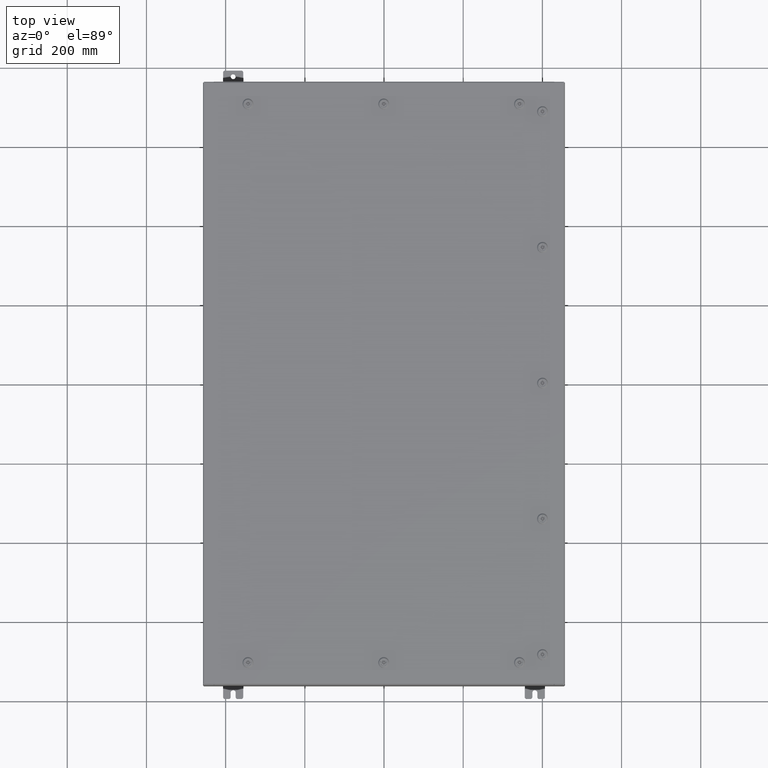
[diagram: clean part render]
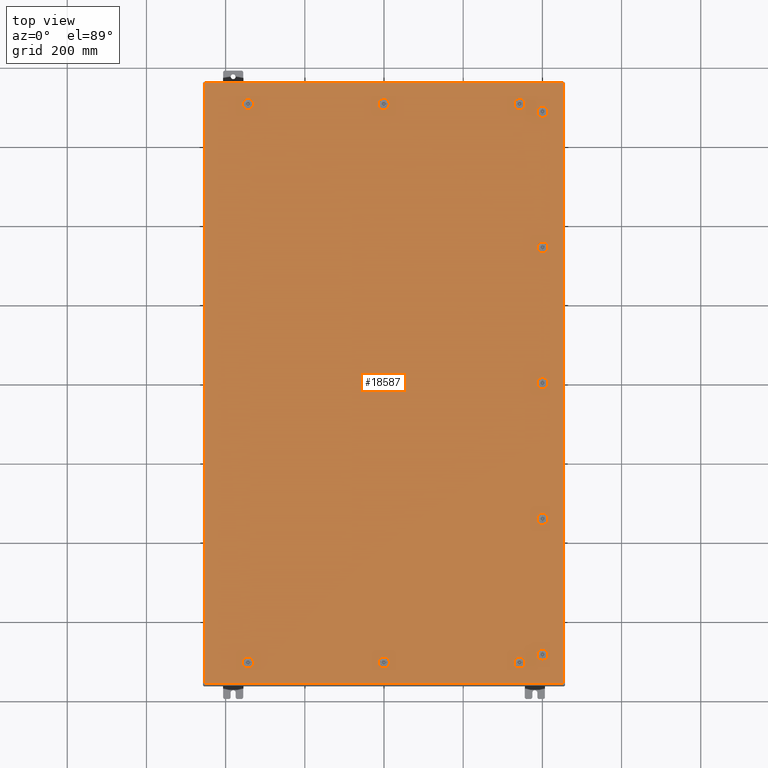
[diagram: same view with one face highlighted and labeled with its STEP entity id]
A machine part, top view. The second image highlights one B-rep face of the part: STEP entity #18587.
In plain terms, the highlighted planar face has unit normal (0, 0, -1).
Its self-contained STEP definition (entity closure, byte-faithful):
#220 = VERTEX_POINT ( 'NONE', #23603 ) ;
#528 = FACE_BOUND ( 'NONE', #1565, .T. ) ;
#843 = LINE ( 'NONE', #63535, #13342 ) ;
#865 = VECTOR ( 'NONE', #45114, 39.37007874015748100 ) ;
#869 = ORIENTED_EDGE ( 'NONE', *, *, #2187, .F. ) ;
#908 = EDGE_LOOP ( 'NONE', ( #43928, #58422, #61306, #27218 ) ) ;
#1167 = LINE ( 'NONE', #28149, #11993 ) ;
#1236 = ORIENTED_EDGE ( 'NONE', *, *, #60644, .F. ) ;
#1248 = DIRECTION ( 'NONE',  ( 1.000000000000000000, 0.0000000000000000000, 0.0000000000000000000 ) ) ;
#1367 = CARTESIAN_POINT ( 'NONE',  ( 13.49999999999998600, 27.78780000000000100, -9.426999614876453700E-014 ) ) ;
#1439 = VERTEX_POINT ( 'NONE', #38857 ) ;
#1546 = VERTEX_POINT ( 'NONE', #28765 ) ;
#1565 = EDGE_LOOP ( 'NONE', ( #2368, #68576, #12767, #21330 ) ) ;
#1644 = AXIS2_PLACEMENT_3D ( 'NONE', #12129, #49527, #17473 ) ;
#1695 = EDGE_CURVE ( 'NONE', #48934, #34181, #65486, .T. ) ;
#2107 = EDGE_CURVE ( 'NONE', #1546, #54609, #25232, .T. ) ;
#2187 = EDGE_CURVE ( 'NONE', #1439, #32171, #52006, .T. ) ;
#2241 = VERTEX_POINT ( 'NONE', #54406 ) ;
#2368 = ORIENTED_EDGE ( 'NONE', *, *, #33080, .F. ) ;
#2431 = DIRECTION ( 'NONE',  ( 0.0000000000000000000, 0.0000000000000000000, 1.000000000000000000 ) ) ;
#2503 = CARTESIAN_POINT ( 'NONE',  ( 15.39280000000001900, 27.19945237526790300, 0.0000000000000000000 ) ) ;
#2537 = LINE ( 'NONE', #66394, #865 ) ;
#2580 = CARTESIAN_POINT ( 'NONE',  ( 17.84979999999999800, 29.84980000000001300, 1.946441695485787500E-015 ) ) ;
#2694 = ORIENTED_EDGE ( 'NONE', *, *, #59518, .F. ) ;
#2816 = CARTESIAN_POINT ( 'NONE',  ( 0.1994523752679067700, -28.18279999999999300, -2.548900087721007400E-013 ) ) ;
#3038 = CARTESIAN_POINT ( 'NONE',  ( 15.39280000000001900, 13.69945237526790600, 0.0000000000000000000 ) ) ;
#3260 = ORIENTED_EDGE ( 'NONE', *, *, #3311, .F. ) ;
#3311 = EDGE_CURVE ( 'NONE', #25076, #10762, #61180, .T. ) ;
#3403 = DIRECTION ( 'NONE',  ( 1.000000000000000000, 0.0000000000000000000, 6.982962677686270700E-015 ) ) ;
#3405 = VERTEX_POINT ( 'NONE', #68634 ) ;
#3453 = EDGE_LOOP ( 'NONE', ( #17571, #46515, #3260, #41930, #21880 ) ) ;
#3461 = DIRECTION ( 'NONE',  ( 0.0000000000000000000, 1.000000000000000000, 0.0000000000000000000 ) ) ;
#3538 = VERTEX_POINT ( 'NONE', #16371 ) ;
#4076 = VERTEX_POINT ( 'NONE', #30591 ) ;
#4240 = VERTEX_POINT ( 'NONE', #63569 ) ;
#4435 = EDGE_LOOP ( 'NONE', ( #47374, #18321, #28567, #24436 ) ) ;
#4459 = VECTOR ( 'NONE', #58458, 39.37007874015748100 ) ;
#4688 = ORIENTED_EDGE ( 'NONE', *, *, #5473, .T. ) ;
#4708 = DIRECTION ( 'NONE',  ( 0.0000000000000000000, 0.0000000000000000000, 1.000000000000000000 ) ) ;
#4846 = CARTESIAN_POINT ( 'NONE',  ( -0.1994523752678657400, 28.18280000000000000, 0.0000000000000000000 ) ) ;
#4865 = DIRECTION ( 'NONE',  ( -1.000000000000000000, 0.0000000000000000000, 7.785697190086061500E-029 ) ) ;
#4986 = VERTEX_POINT ( 'NONE', #57305 ) ;
#5129 = EDGE_CURVE ( 'NONE', #22264, #4076, #22650, .T. ) ;
#5171 = LINE ( 'NONE', #53426, #6873 ) ;
#5233 = VERTEX_POINT ( 'NONE', #64312 ) ;
#5315 = CARTESIAN_POINT ( 'NONE',  ( -13.05749999999998900, 27.78780000000000100, 0.0000000000000000000 ) ) ;
#5459 = CIRCLE ( 'NONE', #45275, 0.4424999999999983400 ) ;
#5473 = EDGE_CURVE ( 'NONE', #8703, #19816, #53582, .T. ) ;
#5493 = CARTESIAN_POINT ( 'NONE',  ( 16.18280000000000000, 0.1994523752679009100, 0.0000000000000000000 ) ) ;
#5497 = CARTESIAN_POINT ( 'NONE',  ( -17.84979999999999800, -29.84979999999999500, 1.946441695485787500E-015 ) ) ;
#5559 = VERTEX_POINT ( 'NONE', #3038 ) ;
#5678 = EDGE_CURVE ( 'NONE', #45858, #25076, #48526, .T. ) ;
#5921 = AXIS2_PLACEMENT_3D ( 'NONE', #22201, #59660, #27586 ) ;
#6004 = CARTESIAN_POINT ( 'NONE',  ( -13.30054762473209500, -28.18280000000000700, -2.548900087721007400E-013 ) ) ;
#6061 = LINE ( 'NONE', #6559, #20213 ) ;
#6409 = EDGE_CURVE ( 'NONE', #10762, #62846, #66105, .T. ) ;
#6559 = CARTESIAN_POINT ( 'NONE',  ( -13.30054762473210400, -27.39280000000001900, -2.493734682567286900E-013 ) ) ;
#6636 = CARTESIAN_POINT ( 'NONE',  ( 0.1994523752679067700, 28.18279999999999300, 0.0000000000000000000 ) ) ;
#6725 = DIRECTION ( 'NONE',  ( -1.000000000000000000, 0.0000000000000000000, 6.982962677686269100E-015 ) ) ;
#6873 = VECTOR ( 'NONE', #58820, 39.37007874015748100 ) ;
#7447 = CIRCLE ( 'NONE', #1644, 0.4424999999999961700 ) ;
#7516 = DIRECTION ( 'NONE',  ( -0.0000000000000000000, -6.982962677686266700E-015, 1.000000000000000000 ) ) ;
#7694 = ORIENTED_EDGE ( 'NONE', *, *, #34315, .F. ) ;
#7776 = CIRCLE ( 'NONE', #48303, 0.4424999999999983400 ) ;
#7865 = DIRECTION ( 'NONE',  ( -1.095739467627844000E-014, -1.000000000000000000, 0.0000000000000000000 ) ) ;
#8086 = DIRECTION ( 'NONE',  ( -0.0000000000000000000, -6.982962677686266700E-015, 1.000000000000000000 ) ) ;
#8171 = DIRECTION ( 'NONE',  ( 1.000000000000000000, 1.095739467627836100E-014, 7.785697190085984100E-029 ) ) ;
#8703 = VERTEX_POINT ( 'NONE', #22737 ) ;
#8879 = DIRECTION ( 'NONE',  ( -5.478697338139280000E-015, 1.000000000000000000, -0.0000000000000000000 ) ) ;
#8896 = VERTEX_POINT ( 'NONE', #34424 ) ;
#8937 = EDGE_CURVE ( 'NONE', #30367, #8896, #55014, .T. ) ;
#8985 = CARTESIAN_POINT ( 'NONE',  ( 15.78780000000001500, -27.00000000000001400, -1.885399922975292500E-013 ) ) ;
#9073 = DIRECTION ( 'NONE',  ( 1.000000000000000000, -1.095739467627832000E-014, 6.982962677686152300E-015 ) ) ;
#9282 = CIRCLE ( 'NONE', #37615, 0.4424999999999972800 ) ;
#9424 = AXIS2_PLACEMENT_3D ( 'NONE', #22128, #59575, #27497 ) ;
#9447 = DIRECTION ( 'NONE',  ( 0.0000000000000000000, 0.0000000000000000000, -1.000000000000000000 ) ) ;
#9879 = VECTOR ( 'NONE', #7865, 39.37007874015748100 ) ;
#9902 = CARTESIAN_POINT ( 'NONE',  ( 0.0000000000000000000, 0.0000000000000000000, 0.0000000000000000000 ) ) ;
#10132 = VERTEX_POINT ( 'NONE', #26691 ) ;
#10194 = ORIENTED_EDGE ( 'NONE', *, *, #66182, .F. ) ;
#10344 = CIRCLE ( 'NONE', #15964, 0.4424999999999969000 ) ;
#10750 = EDGE_CURVE ( 'NONE', #61162, #65554, #56560, .T. ) ;
#10762 = VERTEX_POINT ( 'NONE', #45107 ) ;
#10807 = ORIENTED_EDGE ( 'NONE', *, *, #51785, .F. ) ;
#10907 = VECTOR ( 'NONE', #61245, 39.37007874015748100 ) ;
#11031 = LINE ( 'NONE', #6004, #39498 ) ;
#11078 = LINE ( 'NONE', #42241, #37870 ) ;
#11232 = LINE ( 'NONE', #34393, #38020 ) ;
#11342 = FACE_BOUND ( 'NONE', #52379, .T. ) ;
#11696 = EDGE_CURVE ( 'NONE', #62846, #30850, #45631, .T. ) ;
#11755 = CIRCLE ( 'NONE', #5921, 0.4424999999999972800 ) ;
#11993 = VECTOR ( 'NONE', #55061, 39.37007874015748100 ) ;
#11998 = EDGE_CURVE ( 'NONE', #50233, #46603, #60681, .T. ) ;
#12001 = EDGE_CURVE ( 'NONE', #47798, #19060, #5459, .T. ) ;
#12129 = CARTESIAN_POINT ( 'NONE',  ( 13.49999999999998600, -27.78780000000000800, -1.578617423656501800E-013 ) ) ;
#12139 = DIRECTION ( 'NONE',  ( -1.000000000000000000, 0.0000000000000000000, 7.785697190086082800E-029 ) ) ;
#12214 = CARTESIAN_POINT ( 'NONE',  ( 15.39280000000001400, 13.30054762473213400, 0.0000000000000000000 ) ) ;
#12362 = CARTESIAN_POINT ( 'NONE',  ( 15.39280000000001900, 27.19945237526790300, 0.0000000000000000000 ) ) ;
#12453 = DIRECTION ( 'NONE',  ( 6.982962677686266700E-015, -0.0000000000000000000, 1.000000000000000000 ) ) ;
#12534 = DIRECTION ( 'NONE',  ( 5.478697338139220100E-015, 1.000000000000000000, 6.982962677686228100E-015 ) ) ;
#12767 = ORIENTED_EDGE ( 'NONE', *, *, #24365, .F. ) ;
#13032 = FACE_BOUND ( 'NONE', #52412, .T. ) ;
#13131 = AXIS2_PLACEMENT_3D ( 'NONE', #16745, #54178, #22132 ) ;
#13210 = VECTOR ( 'NONE', #8879, 39.37007874015748100 ) ;
#13342 = VECTOR ( 'NONE', #4865, 39.37007874015748100 ) ;
#13385 = AXIS2_PLACEMENT_3D ( 'NONE', #50004, #17958, #55393 ) ;
#13713 = ORIENTED_EDGE ( 'NONE', *, *, #62500, .F. ) ;
#13888 = EDGE_CURVE ( 'NONE', #3538, #4240, #2537, .T. ) ;
#13978 = ORIENTED_EDGE ( 'NONE', *, *, #2107, .F. ) ;
#14034 = VERTEX_POINT ( 'NONE', #36162 ) ;
#14314 = DIRECTION ( 'NONE',  ( 0.0000000000000000000, 1.000000000000000000, 6.982962677686270700E-015 ) ) ;
#14351 = VECTOR ( 'NONE', #54130, 39.37007874015748100 ) ;
#14445 = CARTESIAN_POINT ( 'NONE',  ( 13.49999999999998600, -27.78780000000000800, -1.578617423656501800E-013 ) ) ;
#14535 = LINE ( 'NONE', #40407, #16203 ) ;
#14704 = EDGE_CURVE ( 'NONE', #4986, #17893, #59340, .T. ) ;
#14993 = VERTEX_POINT ( 'NONE', #32103 ) ;
#15162 = LINE ( 'NONE', #35702, #40319 ) ;
#15224 = PLANE ( 'NONE',  #49574 ) ;
#15405 = AXIS2_PLACEMENT_3D ( 'NONE', #36714, #4708, #42113 ) ;
#15456 = CARTESIAN_POINT ( 'NONE',  ( -13.30054762473210400, -27.39280000000001900, -2.493734682567286900E-013 ) ) ;
#15495 = VERTEX_POINT ( 'NONE', #58153 ) ;
#15667 = ORIENTED_EDGE ( 'NONE', *, *, #41396, .T. ) ;
#15938 = EDGE_CURVE ( 'NONE', #17893, #10132, #24092, .T. ) ;
#15964 = AXIS2_PLACEMENT_3D ( 'NONE', #53817, #21772, #59214 ) ;
#16078 = CARTESIAN_POINT ( 'NONE',  ( 15.39280000000002100, -13.69945237526790600, -9.566276464123621500E-014 ) ) ;
#16203 = VECTOR ( 'NONE', #3461, 39.37007874015748100 ) ;
#16371 = CARTESIAN_POINT ( 'NONE',  ( -13.69945237526786900, 27.39280000000000500, 0.0000000000000000000 ) ) ;
#16435 = CARTESIAN_POINT ( 'NONE',  ( 15.78780000000001000, 13.50000000000001800, 0.0000000000000000000 ) ) ;
#16499 = CARTESIAN_POINT ( 'NONE',  ( 1.529834876451987200E-014, -27.78780000000000100, -2.521317385144146900E-013 ) ) ;
#16627 = CARTESIAN_POINT ( 'NONE',  ( 0.1994523752679054600, -28.18279999999999300, -2.548900087721007400E-013 ) ) ;
#16745 = CARTESIAN_POINT ( 'NONE',  ( 13.49999999999998600, 27.78780000000000100, -9.426999614876453700E-014 ) ) ;
#16809 = VERTEX_POINT ( 'NONE', #19539 ) ;
#16854 = CARTESIAN_POINT ( 'NONE',  ( 13.94249999999998300, 27.78780000000000100, -9.735995713364067600E-014 ) ) ;
#17291 = CARTESIAN_POINT ( 'NONE',  ( -0.1994523752678689600, 27.39280000000000500, 0.0000000000000000000 ) ) ;
#17473 = DIRECTION ( 'NONE',  ( 1.000000000000000000, 0.0000000000000000000, 6.982962677686304600E-015 ) ) ;
#17523 = VERTEX_POINT ( 'NONE', #47661 ) ;
#17542 = EDGE_LOOP ( 'NONE', ( #60376, #44419, #4688, #15667 ) ) ;
#17571 = ORIENTED_EDGE ( 'NONE', *, *, #11696, .F. ) ;
#17893 = VERTEX_POINT ( 'NONE', #12362 ) ;
#17958 = DIRECTION ( 'NONE',  ( -0.0000000000000000000, -6.982962677686266700E-015, 1.000000000000000000 ) ) ;
#18321 = ORIENTED_EDGE ( 'NONE', *, *, #27967, .F. ) ;
#18343 = CARTESIAN_POINT ( 'NONE',  ( -13.69945237526786900, -28.18280000000001100, 0.0000000000000000000 ) ) ;
#18440 = EDGE_CURVE ( 'NONE', #55340, #24314, #33977, .T. ) ;
#18587 = ADVANCED_FACE ( 'NONE', ( #528, #55717, #27221, #41482, #13032, #68245, #54025, #39818, #25545, #11342, #66594, #52330 ), #15224, .F. ) ;
#18716 = CARTESIAN_POINT ( 'NONE',  ( 15.39280000000001400, 0.1994523752679062100, 0.0000000000000000000 ) ) ;
#18730 = CARTESIAN_POINT ( 'NONE',  ( 13.30054762473210200, 27.39280000000000500, -9.287722765629301200E-014 ) ) ;
#18840 = EDGE_CURVE ( 'NONE', #220, #28749, #29721, .T. ) ;
#19060 = VERTEX_POINT ( 'NONE', #18716 ) ;
#19438 = CARTESIAN_POINT ( 'NONE',  ( 15.78780000000001300, -13.50000000000001800, -9.426999614876466400E-014 ) ) ;
#19539 = CARTESIAN_POINT ( 'NONE',  ( 13.69945237526786700, 28.18280000000000000, 0.0000000000000000000 ) ) ;
#19816 = VERTEX_POINT ( 'NONE', #37005 ) ;
#19828 = DIRECTION ( 'NONE',  ( 1.000000000000000000, 0.0000000000000000000, 6.982962677686270700E-015 ) ) ;
#19884 = VECTOR ( 'NONE', #21473, 39.37007874015748100 ) ;
#20140 = ORIENTED_EDGE ( 'NONE', *, *, #8937, .F. ) ;
#20213 = VECTOR ( 'NONE', #12139, 39.37007874015748100 ) ;
#20620 = DIRECTION ( 'NONE',  ( -1.000000000000000000, 0.0000000000000000000, -0.0000000000000000000 ) ) ;
#20631 = CARTESIAN_POINT ( 'NONE',  ( -13.49999999999998600, -27.78780000000001500, -2.521317385144146900E-013 ) ) ;
#21017 = CARTESIAN_POINT ( 'NONE',  ( 15.39280000000002200, -27.19945237526790300, -1.899327607900008200E-013 ) ) ;
#21330 = ORIENTED_EDGE ( 'NONE', *, *, #10750, .F. ) ;
#21473 = DIRECTION ( 'NONE',  ( 1.095739467627838000E-014, -1.000000000000000000, -6.982962677686269100E-015 ) ) ;
#21706 = CARTESIAN_POINT ( 'NONE',  ( 15.39280000000002200, -27.19945237526790300, -1.899327607900007900E-013 ) ) ;
#21772 = DIRECTION ( 'NONE',  ( 0.0000000000000000000, 0.0000000000000000000, 1.000000000000000000 ) ) ;
#21832 = DIRECTION ( 'NONE',  ( 1.000000000000000000, 0.0000000000000000000, 0.0000000000000000000 ) ) ;
#21848 = ORIENTED_EDGE ( 'NONE', *, *, #34529, .F. ) ;
#21880 = ORIENTED_EDGE ( 'NONE', *, *, #47084, .F. ) ;
#21896 = DIRECTION ( 'NONE',  ( 0.0000000000000000000, 1.000000000000000000, 6.982962677686270700E-015 ) ) ;
#22128 = CARTESIAN_POINT ( 'NONE',  ( 1.529834876451987200E-014, -27.78780000000000100, -2.521317385144146900E-013 ) ) ;
#22132 = DIRECTION ( 'NONE',  ( -1.000000000000000000, 0.0000000000000000000, 6.982962677686269100E-015 ) ) ;
#22201 = CARTESIAN_POINT ( 'NONE',  ( 1.529834876451987200E-014, 27.78780000000000100, 0.0000000000000000000 ) ) ;
#22213 = VERTEX_POINT ( 'NONE', #16627 ) ;
#22264 = VERTEX_POINT ( 'NONE', #12214 ) ;
#22289 = EDGE_CURVE ( 'NONE', #23911, #30367, #7776, .T. ) ;
#22344 = CARTESIAN_POINT ( 'NONE',  ( -13.49999999999998600, 27.78780000000000100, 0.0000000000000000000 ) ) ;
#22650 = CIRCLE ( 'NONE', #15405, 0.4424999999999983400 ) ;
#22737 = CARTESIAN_POINT ( 'NONE',  ( 17.84979999999999800, 29.84980000000001300, 1.946441695485787500E-015 ) ) ;
#23011 = EDGE_CURVE ( 'NONE', #19060, #15495, #1167, .T. ) ;
#23494 = CARTESIAN_POINT ( 'NONE',  ( 15.78780000000000600, 1.529834876451990400E-014, 0.0000000000000000000 ) ) ;
#23603 = CARTESIAN_POINT ( 'NONE',  ( 0.1994523752679054600, 28.18279999999999300, 0.0000000000000000000 ) ) ;
#23911 = VERTEX_POINT ( 'NONE', #30070 ) ;
#24092 = LINE ( 'NONE', #2503, #9879 ) ;
#24166 = CARTESIAN_POINT ( 'NONE',  ( 0.1994523752678995500, -27.39280000000000500, -2.493734682567286900E-013 ) ) ;
#24227 = AXIS2_PLACEMENT_3D ( 'NONE', #61512, #29455, #66889 ) ;
#24255 = EDGE_CURVE ( 'NONE', #4076, #5233, #58741, .T. ) ;
#24314 = VERTEX_POINT ( 'NONE', #42933 ) ;
#24356 = EDGE_CURVE ( 'NONE', #34181, #62239, #11031, .T. ) ;
#24365 = EDGE_CURVE ( 'NONE', #65554, #55340, #25229, .T. ) ;
#24436 = ORIENTED_EDGE ( 'NONE', *, *, #14704, .F. ) ;
#24810 = DIRECTION ( 'NONE',  ( 0.0000000000000000000, 1.000000000000000000, 6.982962677686269100E-015 ) ) ;
#25076 = VERTEX_POINT ( 'NONE', #38191 ) ;
#25229 = LINE ( 'NONE', #43386, #14351 ) ;
#25232 = CIRCLE ( 'NONE', #64519, 0.4424999999999983400 ) ;
#25361 = ORIENTED_EDGE ( 'NONE', *, *, #59740, .F. ) ;
#25429 = AXIS2_PLACEMENT_3D ( 'NONE', #19438, #56869, #24810 ) ;
#25545 = FACE_BOUND ( 'NONE', #39095, .T. ) ;
#25696 = CARTESIAN_POINT ( 'NONE',  ( 13.30054762473210400, -27.39280000000001500, -1.564962406004356200E-013 ) ) ;
#25998 = DIRECTION ( 'NONE',  ( 0.0000000000000000000, 1.000000000000000000, 6.982962677686270700E-015 ) ) ;
#26095 = EDGE_CURVE ( 'NONE', #2241, #4986, #55900, .T. ) ;
#26165 = DIRECTION ( 'NONE',  ( -0.0000000000000000000, -6.982962677686266700E-015, 1.000000000000000000 ) ) ;
#26303 = DIRECTION ( 'NONE',  ( 1.000000000000000000, -0.0000000000000000000, -0.0000000000000000000 ) ) ;
#26368 = CARTESIAN_POINT ( 'NONE',  ( 15.78780000000001300, -13.50000000000001800, -9.426999614876466400E-014 ) ) ;
#26542 = CARTESIAN_POINT ( 'NONE',  ( 13.69945237526787100, -27.39280000000001500, 0.0000000000000000000 ) ) ;
#26691 = CARTESIAN_POINT ( 'NONE',  ( 15.39280000000001400, 26.80054762473213300, 0.0000000000000000000 ) ) ;
#26758 = CARTESIAN_POINT ( 'NONE',  ( 16.18280000000000700, 13.69945237526790100, 0.0000000000000000000 ) ) ;
#26802 = ORIENTED_EDGE ( 'NONE', *, *, #39874, .F. ) ;
#26903 = CARTESIAN_POINT ( 'NONE',  ( 0.1994523752678995500, 27.39280000000000500, 0.0000000000000000000 ) ) ;
#27117 = CARTESIAN_POINT ( 'NONE',  ( 16.18280000000001100, -27.19945237526789600, -1.899327607900007900E-013 ) ) ;
#27218 = ORIENTED_EDGE ( 'NONE', *, *, #63207, .F. ) ;
#27221 = FACE_BOUND ( 'NONE', #4435, .T. ) ;
#27497 = DIRECTION ( 'NONE',  ( 0.0000000000000000000, 1.000000000000000000, 6.982962677686270700E-015 ) ) ;
#27507 = LINE ( 'NONE', #5497, #30860 ) ;
#27586 = DIRECTION ( 'NONE',  ( 1.000000000000000000, 0.0000000000000000000, 0.0000000000000000000 ) ) ;
#27720 = DIRECTION ( 'NONE',  ( 1.000000000000000000, 0.0000000000000000000, 0.0000000000000000000 ) ) ;
#27967 = EDGE_CURVE ( 'NONE', #10132, #2241, #67576, .T. ) ;
#28028 = VECTOR ( 'NONE', #42252, 39.37007874015748100 ) ;
#28149 = CARTESIAN_POINT ( 'NONE',  ( 15.39280000000001400, 0.1994523752679053800, 0.0000000000000000000 ) ) ;
#28222 = VECTOR ( 'NONE', #56166, 39.37007874015748100 ) ;
#28567 = ORIENTED_EDGE ( 'NONE', *, *, #15938, .F. ) ;
#28629 = DIRECTION ( 'NONE',  ( 0.0000000000000000000, 0.0000000000000000000, 1.000000000000000000 ) ) ;
#28749 = VERTEX_POINT ( 'NONE', #4846 ) ;
#28765 = CARTESIAN_POINT ( 'NONE',  ( -0.1994523752678689600, -27.39280000000000500, -2.493734682567286400E-013 ) ) ;
#28836 = VERTEX_POINT ( 'NONE', #5315 ) ;
#28872 = DIRECTION ( 'NONE',  ( 1.000000000000000000, 0.0000000000000000000, 0.0000000000000000000 ) ) ;
#29455 = DIRECTION ( 'NONE',  ( 0.0000000000000000000, 0.0000000000000000000, 1.000000000000000000 ) ) ;
#29721 = LINE ( 'NONE', #6636, #58191 ) ;
#29746 = ORIENTED_EDGE ( 'NONE', *, *, #58281, .F. ) ;
#29978 = AXIS2_PLACEMENT_3D ( 'NONE', #39528, #7516, #44913 ) ;
#30070 = CARTESIAN_POINT ( 'NONE',  ( 13.30054762473209400, 28.18279999999999300, -9.287722765629296100E-014 ) ) ;
#30099 = EDGE_CURVE ( 'NONE', #62239, #14993, #38136, .T. ) ;
#30121 = VERTEX_POINT ( 'NONE', #47287 ) ;
#30263 = VECTOR ( 'NONE', #42234, 39.37007874015748100 ) ;
#30367 = VERTEX_POINT ( 'NONE', #55270 ) ;
#30467 = ORIENTED_EDGE ( 'NONE', *, *, #35010, .F. ) ;
#30479 = CARTESIAN_POINT ( 'NONE',  ( -0.1994523752678657400, -28.18280000000000400, 0.0000000000000000000 ) ) ;
#30485 = DIRECTION ( 'NONE',  ( 0.0000000000000000000, 0.0000000000000000000, 1.000000000000000000 ) ) ;
#30591 = CARTESIAN_POINT ( 'NONE',  ( 16.18280000000000700, 13.30054762473213300, 0.0000000000000000000 ) ) ;
#30599 = DIRECTION ( 'NONE',  ( 0.0000000000000000000, 0.0000000000000000000, 1.000000000000000000 ) ) ;
#30850 = VERTEX_POINT ( 'NONE', #68910 ) ;
#30860 = VECTOR ( 'NONE', #58771, 39.37007874015748100 ) ;
#31112 = EDGE_CURVE ( 'NONE', #46603, #59215, #61491, .T. ) ;
#31191 = LINE ( 'NONE', #21017, #4459 ) ;
#31749 = EDGE_CURVE ( 'NONE', #17523, #8703, #14535, .T. ) ;
#31763 = DIRECTION ( 'NONE',  ( 0.0000000000000000000, 1.000000000000000000, 6.982962677686270700E-015 ) ) ;
#31880 = VERTEX_POINT ( 'NONE', #41767 ) ;
#32103 = CARTESIAN_POINT ( 'NONE',  ( -13.05749999999999000, -27.78780000000001500, -2.521317385144146900E-013 ) ) ;
#32171 = VERTEX_POINT ( 'NONE', #24166 ) ;
#32176 = VECTOR ( 'NONE', #12534, 39.37007874015748100 ) ;
#32327 = AXIS2_PLACEMENT_3D ( 'NONE', #62547, #30485, #67923 ) ;
#32352 = VERTEX_POINT ( 'NONE', #15456 ) ;
#32457 = EDGE_CURVE ( 'NONE', #28749, #41775, #10344, .T. ) ;
#32558 = VERTEX_POINT ( 'NONE', #16854 ) ;
#33080 = EDGE_CURVE ( 'NONE', #24314, #61162, #31191, .T. ) ;
#33219 = DIRECTION ( 'NONE',  ( 0.0000000000000000000, 0.0000000000000000000, 1.000000000000000000 ) ) ;
#33515 = CARTESIAN_POINT ( 'NONE',  ( 16.18280000000001100, -13.30054762473213300, -9.287722765629316300E-014 ) ) ;
#33719 = EDGE_CURVE ( 'NONE', #41775, #48179, #11078, .T. ) ;
#33899 = CARTESIAN_POINT ( 'NONE',  ( -13.69945237526786700, 28.18280000000000000, 0.0000000000000000000 ) ) ;
#33977 = CIRCLE ( 'NONE', #68822, 0.4424999999999983400 ) ;
#34181 = VERTEX_POINT ( 'NONE', #18343 ) ;
#34268 = EDGE_LOOP ( 'NONE', ( #38645, #39914, #36703, #21848, #39563 ) ) ;
#34315 = EDGE_CURVE ( 'NONE', #8896, #32558, #63751, .T. ) ;
#34393 = CARTESIAN_POINT ( 'NONE',  ( 15.39280000000001900, 13.69945237526790600, 0.0000000000000000000 ) ) ;
#34422 = CARTESIAN_POINT ( 'NONE',  ( -13.49999999999998600, 27.78780000000000100, 0.0000000000000000000 ) ) ;
#34424 = CARTESIAN_POINT ( 'NONE',  ( 13.69945237526786900, 27.39280000000000500, -9.566276464123603800E-014 ) ) ;
#34529 = EDGE_CURVE ( 'NONE', #14993, #32352, #44528, .T. ) ;
#34767 = AXIS2_PLACEMENT_3D ( 'NONE', #20631, #58083, #25998 ) ;
#34876 = VECTOR ( 'NONE', #8171, 39.37007874015748100 ) ;
#34913 = EDGE_LOOP ( 'NONE', ( #55411, #55004, #10807, #10194 ) ) ;
#35010 = EDGE_CURVE ( 'NONE', #15495, #30121, #41955, .T. ) ;
#35312 = ORIENTED_EDGE ( 'NONE', *, *, #56745, .F. ) ;
#35410 = DIRECTION ( 'NONE',  ( -6.982962677686266700E-015, -6.982962677686266700E-015, 1.000000000000000000 ) ) ;
#35555 = EDGE_CURVE ( 'NONE', #3405, #220, #9282, .T. ) ;
#35702 = CARTESIAN_POINT ( 'NONE',  ( -13.30054762473209400, 28.18279999999999300, 0.0000000000000000000 ) ) ;
#36162 = CARTESIAN_POINT ( 'NONE',  ( 15.39280000000002100, -13.69945237526790600, -9.566276464123621500E-014 ) ) ;
#36536 = ORIENTED_EDGE ( 'NONE', *, *, #52850, .F. ) ;
#36703 = ORIENTED_EDGE ( 'NONE', *, *, #56457, .F. ) ;
#36714 = CARTESIAN_POINT ( 'NONE',  ( 15.78780000000001000, 13.50000000000001800, 0.0000000000000000000 ) ) ;
#36807 = AXIS2_PLACEMENT_3D ( 'NONE', #16435, #53881, #21832 ) ;
#36974 = LINE ( 'NONE', #41662, #49525 ) ;
#37005 = CARTESIAN_POINT ( 'NONE',  ( -17.84979999999998100, 29.84980000000000500, 4.166068190338001500E-015 ) ) ;
#37401 = CARTESIAN_POINT ( 'NONE',  ( -13.69945237526787100, -27.39280000000001900, -2.493734682567286400E-013 ) ) ;
#37445 = AXIS2_PLACEMENT_3D ( 'NONE', #22344, #59804, #27720 ) ;
#37615 = AXIS2_PLACEMENT_3D ( 'NONE', #65283, #33219, #1248 ) ;
#37870 = VECTOR ( 'NONE', #26303, 39.37007874015748100 ) ;
#38019 = DIRECTION ( 'NONE',  ( 1.000000000000000000, 1.095739467627832000E-014, 7.785697190085955000E-029 ) ) ;
#38020 = VECTOR ( 'NONE', #39780, 39.37007874015748100 ) ;
#38136 = CIRCLE ( 'NONE', #34767, 0.4424999999999983400 ) ;
#38191 = CARTESIAN_POINT ( 'NONE',  ( 13.69945237526786900, -28.18280000000000700, -1.592272441308647100E-013 ) ) ;
#38645 = ORIENTED_EDGE ( 'NONE', *, *, #24356, .F. ) ;
#38744 = DIRECTION ( 'NONE',  ( 6.982962677686266700E-015, -0.0000000000000000000, 1.000000000000000000 ) ) ;
#38857 = CARTESIAN_POINT ( 'NONE',  ( 0.4425000000000125500, -27.78780000000000100, -2.521317385144146900E-013 ) ) ;
#39095 = EDGE_LOOP ( 'NONE', ( #43357, #26802, #7694, #20140, #49897 ) ) ;
#39281 = ORIENTED_EDGE ( 'NONE', *, *, #32457, .F. ) ;
#39498 = VECTOR ( 'NONE', #38019, 39.37007874015748100 ) ;
#39528 = CARTESIAN_POINT ( 'NONE',  ( -13.49999999999998600, -27.78780000000001500, -2.521317385144146900E-013 ) ) ;
#39563 = ORIENTED_EDGE ( 'NONE', *, *, #30099, .F. ) ;
#39780 = DIRECTION ( 'NONE',  ( -1.095739467627838000E-014, -1.000000000000000000, 0.0000000000000000000 ) ) ;
#39803 = DIRECTION ( 'NONE',  ( 1.000000000000000000, 0.0000000000000000000, 0.0000000000000000000 ) ) ;
#39818 = FACE_BOUND ( 'NONE', #68134, .T. ) ;
#39874 = EDGE_CURVE ( 'NONE', #32558, #16809, #68045, .T. ) ;
#39914 = ORIENTED_EDGE ( 'NONE', *, *, #1695, .F. ) ;
#40116 = CARTESIAN_POINT ( 'NONE',  ( -13.49999999999998600, -27.78780000000001500, -2.521317385144146900E-013 ) ) ;
#40319 = VECTOR ( 'NONE', #41084, 39.37007874015748100 ) ;
#40407 = CARTESIAN_POINT ( 'NONE',  ( 17.84979999999999800, -29.84979999999998800, -2.048885995248197400E-016 ) ) ;
#40818 = ORIENTED_EDGE ( 'NONE', *, *, #35555, .F. ) ;
#41084 = DIRECTION ( 'NONE',  ( -1.000000000000000000, 1.095739467627832000E-014, 0.0000000000000000000 ) ) ;
#41133 = CARTESIAN_POINT ( 'NONE',  ( 16.18280000000000700, 27.19945237526789600, 0.0000000000000000000 ) ) ;
#41396 = EDGE_CURVE ( 'NONE', #19816, #31880, #36974, .T. ) ;
#41482 = FACE_BOUND ( 'NONE', #34913, .T. ) ;
#41662 = CARTESIAN_POINT ( 'NONE',  ( -17.84979999999998100, 29.84980000000000500, 4.166068190338001500E-015 ) ) ;
#41767 = CARTESIAN_POINT ( 'NONE',  ( -17.84979999999999800, -29.84979999999999500, 1.946441695485787500E-015 ) ) ;
#41775 = VERTEX_POINT ( 'NONE', #17291 ) ;
#41930 = ORIENTED_EDGE ( 'NONE', *, *, #5678, .F. ) ;
#41955 = CIRCLE ( 'NONE', #61804, 0.4424999999999983400 ) ;
#42092 = ORIENTED_EDGE ( 'NONE', *, *, #57752, .F. ) ;
#42113 = DIRECTION ( 'NONE',  ( 1.000000000000000000, 0.0000000000000000000, 0.0000000000000000000 ) ) ;
#42234 = DIRECTION ( 'NONE',  ( -5.478697338139220100E-015, 1.000000000000000000, -0.0000000000000000000 ) ) ;
#42241 = CARTESIAN_POINT ( 'NONE',  ( 0.1994523752678995500, 27.39280000000000500, 0.0000000000000000000 ) ) ;
#42252 = DIRECTION ( 'NONE',  ( -1.000000000000000000, -0.0000000000000000000, -6.982962677686265900E-015 ) ) ;
#42605 = AXIS2_PLACEMENT_3D ( 'NONE', #14445, #51866, #19828 ) ;
#42933 = CARTESIAN_POINT ( 'NONE',  ( 15.39280000000001900, -26.80054762473213300, 0.0000000000000000000 ) ) ;
#43212 = CIRCLE ( 'NONE', #25429, 0.4424999999999961700 ) ;
#43329 = ORIENTED_EDGE ( 'NONE', *, *, #23011, .F. ) ;
#43357 = ORIENTED_EDGE ( 'NONE', *, *, #57050, .F. ) ;
#43386 = CARTESIAN_POINT ( 'NONE',  ( 16.18280000000001100, -27.19945237526789600, -1.899327607900007900E-013 ) ) ;
#43928 = ORIENTED_EDGE ( 'NONE', *, *, #61080, .F. ) ;
#44020 = DIRECTION ( 'NONE',  ( -1.000000000000000000, 1.095739467627836100E-014, 0.0000000000000000000 ) ) ;
#44419 = ORIENTED_EDGE ( 'NONE', *, *, #31749, .T. ) ;
#44500 = CARTESIAN_POINT ( 'NONE',  ( 13.49999999999998600, 27.78780000000000100, -9.426999614876453700E-014 ) ) ;
#44528 = CIRCLE ( 'NONE', #52349, 0.4424999999999983400 ) ;
#44913 = DIRECTION ( 'NONE',  ( 0.0000000000000000000, 1.000000000000000000, 6.982962677686270700E-015 ) ) ;
#45107 = CARTESIAN_POINT ( 'NONE',  ( 13.94249999999998500, -27.78780000000000800, -1.547717813807740000E-013 ) ) ;
#45114 = DIRECTION ( 'NONE',  ( 1.000000000000000000, -0.0000000000000000000, -0.0000000000000000000 ) ) ;
#45275 = AXIS2_PLACEMENT_3D ( 'NONE', #23494, #60942, #28872 ) ;
#45499 = DIRECTION ( 'NONE',  ( 0.0000000000000000000, 1.000000000000000000, 6.982962677686270700E-015 ) ) ;
#45620 = CIRCLE ( 'NONE', #24227, 0.4424999999999983400 ) ;
#45631 = LINE ( 'NONE', #25696, #28028 ) ;
#45858 = VERTEX_POINT ( 'NONE', #54638 ) ;
#46186 = ORIENTED_EDGE ( 'NONE', *, *, #12001, .F. ) ;
#46368 = DIRECTION ( 'NONE',  ( -0.0000000000000000000, -6.982962677686266700E-015, 1.000000000000000000 ) ) ;
#46380 = EDGE_CURVE ( 'NONE', #31880, #17523, #27507, .T. ) ;
#46515 = ORIENTED_EDGE ( 'NONE', *, *, #6409, .F. ) ;
#46603 = VERTEX_POINT ( 'NONE', #33515 ) ;
#46852 = VECTOR ( 'NONE', #9073, 39.37007874015748100 ) ;
#47012 = DIRECTION ( 'NONE',  ( 0.0000000000000000000, -1.000000000000000000, 0.0000000000000000000 ) ) ;
#47084 = EDGE_CURVE ( 'NONE', #30850, #45858, #7447, .T. ) ;
#47274 = AXIS2_PLACEMENT_3D ( 'NONE', #67448, #35410, #3403 ) ;
#47287 = CARTESIAN_POINT ( 'NONE',  ( 16.18280000000000700, -0.1994523752678676000, 0.0000000000000000000 ) ) ;
#47374 = ORIENTED_EDGE ( 'NONE', *, *, #26095, .F. ) ;
#47661 = CARTESIAN_POINT ( 'NONE',  ( 17.84979999999999800, -29.84979999999998800, -2.048885995248197400E-016 ) ) ;
#47798 = VERTEX_POINT ( 'NONE', #65613 ) ;
#47900 = VERTEX_POINT ( 'NONE', #66291 ) ;
#48179 = VERTEX_POINT ( 'NONE', #26903 ) ;
#48303 = AXIS2_PLACEMENT_3D ( 'NONE', #44500, #12453, #49847 ) ;
#48526 = LINE ( 'NONE', #57005, #46852 ) ;
#48934 = VERTEX_POINT ( 'NONE', #37401 ) ;
#48955 = AXIS2_PLACEMENT_3D ( 'NONE', #62664, #30599, #68043 ) ;
#49087 = LINE ( 'NONE', #2816, #34876 ) ;
#49289 = CIRCLE ( 'NONE', #37445, 0.4424999999999983400 ) ;
#49525 = VECTOR ( 'NONE', #47012, 39.37007874015748100 ) ;
#49527 = DIRECTION ( 'NONE',  ( -6.982962677686266700E-015, -6.982962677686266700E-015, 1.000000000000000000 ) ) ;
#49574 = AXIS2_PLACEMENT_3D ( 'NONE', #9902, #9447, #20620 ) ;
#49847 = DIRECTION ( 'NONE',  ( -1.000000000000000000, 0.0000000000000000000, 6.982962677686270700E-015 ) ) ;
#49897 = ORIENTED_EDGE ( 'NONE', *, *, #22289, .F. ) ;
#50004 = CARTESIAN_POINT ( 'NONE',  ( 15.78780000000001500, -27.00000000000001400, -1.885399922975292500E-013 ) ) ;
#50233 = VERTEX_POINT ( 'NONE', #53380 ) ;
#50440 = VERTEX_POINT ( 'NONE', #33899 ) ;
#51785 = EDGE_CURVE ( 'NONE', #5559, #22264, #11232, .T. ) ;
#51866 = DIRECTION ( 'NONE',  ( -6.982962677686266700E-015, -6.982962677686266700E-015, 1.000000000000000000 ) ) ;
#52006 = CIRCLE ( 'NONE', #9424, 0.4424999999999983400 ) ;
#52330 = FACE_OUTER_BOUND ( 'NONE', #17542, .T. ) ;
#52349 = AXIS2_PLACEMENT_3D ( 'NONE', #40116, #8086, #45499 ) ;
#52379 = EDGE_LOOP ( 'NONE', ( #60975, #1236, #35312, #25361, #36536 ) ) ;
#52412 = EDGE_LOOP ( 'NONE', ( #42092, #30467, #43329, #46186 ) ) ;
#52850 = EDGE_CURVE ( 'NONE', #4240, #28836, #45620, .T. ) ;
#53380 = CARTESIAN_POINT ( 'NONE',  ( 16.18280000000000700, -13.69945237526790100, -9.566276464123617700E-014 ) ) ;
#53426 = CARTESIAN_POINT ( 'NONE',  ( 13.30054762473209400, 28.18279999999999300, -9.287722765629296100E-014 ) ) ;
#53507 = AXIS2_PLACEMENT_3D ( 'NONE', #58230, #26165, #63601 ) ;
#53582 = LINE ( 'NONE', #2580, #10907 ) ;
#53593 = AXIS2_PLACEMENT_3D ( 'NONE', #26368, #63824, #31763 ) ;
#53817 = CARTESIAN_POINT ( 'NONE',  ( 1.529834876451987200E-014, 27.78780000000000100, 0.0000000000000000000 ) ) ;
#53881 = DIRECTION ( 'NONE',  ( 0.0000000000000000000, 0.0000000000000000000, 1.000000000000000000 ) ) ;
#53944 = DIRECTION ( 'NONE',  ( -0.0000000000000000000, -6.982962677686266700E-015, 1.000000000000000000 ) ) ;
#54025 = FACE_BOUND ( 'NONE', #34268, .T. ) ;
#54130 = DIRECTION ( 'NONE',  ( 5.478697338139280000E-015, 1.000000000000000000, 6.982962677686382700E-015 ) ) ;
#54178 = DIRECTION ( 'NONE',  ( 6.982962677686266700E-015, -0.0000000000000000000, 1.000000000000000000 ) ) ;
#54406 = CARTESIAN_POINT ( 'NONE',  ( 16.18280000000000700, 26.80054762473213300, 0.0000000000000000000 ) ) ;
#54478 = CARTESIAN_POINT ( 'NONE',  ( -13.30054762473209500, -28.18280000000000700, -2.548900087721007400E-013 ) ) ;
#54609 = VERTEX_POINT ( 'NONE', #30479 ) ;
#54638 = CARTESIAN_POINT ( 'NONE',  ( 13.30054762473209500, -28.18280000000000400, -1.620127811158077400E-013 ) ) ;
#55004 = ORIENTED_EDGE ( 'NONE', *, *, #5129, .F. ) ;
#55014 = LINE ( 'NONE', #18730, #28222 ) ;
#55061 = DIRECTION ( 'NONE',  ( -1.095739467627836100E-014, -1.000000000000000000, 0.0000000000000000000 ) ) ;
#55270 = CARTESIAN_POINT ( 'NONE',  ( 13.30054762473210200, 27.39280000000000500, -9.287722765629301200E-014 ) ) ;
#55340 = VERTEX_POINT ( 'NONE', #69003 ) ;
#55393 = DIRECTION ( 'NONE',  ( 0.0000000000000000000, 1.000000000000000000, 6.982962677686270700E-015 ) ) ;
#55411 = ORIENTED_EDGE ( 'NONE', *, *, #24255, .F. ) ;
#55717 = FACE_BOUND ( 'NONE', #908, .T. ) ;
#55900 = LINE ( 'NONE', #41133, #13210 ) ;
#56153 = LINE ( 'NONE', #5493, #68671 ) ;
#56166 = DIRECTION ( 'NONE',  ( 1.000000000000000000, 0.0000000000000000000, -6.982962677686306200E-015 ) ) ;
#56185 = EDGE_LOOP ( 'NONE', ( #67872, #39281, #66557, #40818, #63592 ) ) ;
#56457 = EDGE_CURVE ( 'NONE', #32352, #48934, #6061, .T. ) ;
#56560 = CIRCLE ( 'NONE', #13385, 0.4424999999999983400 ) ;
#56745 = EDGE_CURVE ( 'NONE', #47900, #50440, #15162, .T. ) ;
#56869 = DIRECTION ( 'NONE',  ( -0.0000000000000000000, -6.982962677686266700E-015, 1.000000000000000000 ) ) ;
#57005 = CARTESIAN_POINT ( 'NONE',  ( 13.30054762473209500, -28.18280000000000400, -1.620127811158077400E-013 ) ) ;
#57050 = EDGE_CURVE ( 'NONE', #16809, #23911, #5171, .T. ) ;
#57305 = CARTESIAN_POINT ( 'NONE',  ( 16.18280000000000700, 27.19945237526789600, 0.0000000000000000000 ) ) ;
#57752 = EDGE_CURVE ( 'NONE', #30121, #47798, #56153, .T. ) ;
#58083 = DIRECTION ( 'NONE',  ( -0.0000000000000000000, -6.982962677686266700E-015, 1.000000000000000000 ) ) ;
#58153 = CARTESIAN_POINT ( 'NONE',  ( 15.39280000000001000, -0.1994523752678671000, 0.0000000000000000000 ) ) ;
#58191 = VECTOR ( 'NONE', #44020, 39.37007874015748100 ) ;
#58230 = CARTESIAN_POINT ( 'NONE',  ( 1.529834876451987200E-014, -27.78780000000000100, -2.521317385144146900E-013 ) ) ;
#58281 = EDGE_CURVE ( 'NONE', #22213, #1439, #66167, .T. ) ;
#58422 = ORIENTED_EDGE ( 'NONE', *, *, #31112, .F. ) ;
#58458 = DIRECTION ( 'NONE',  ( 1.095739467627844000E-014, -1.000000000000000000, -6.982962677686306200E-015 ) ) ;
#58741 = LINE ( 'NONE', #26758, #30263 ) ;
#58771 = DIRECTION ( 'NONE',  ( 1.000000000000000000, -0.0000000000000000000, -0.0000000000000000000 ) ) ;
#58820 = DIRECTION ( 'NONE',  ( -1.000000000000000000, -1.095739467627832000E-014, 6.982962677686228800E-015 ) ) ;
#59009 = DIRECTION ( 'NONE',  ( -5.478697338139235000E-015, 1.000000000000000000, -0.0000000000000000000 ) ) ;
#59214 = DIRECTION ( 'NONE',  ( 1.000000000000000000, 0.0000000000000000000, 0.0000000000000000000 ) ) ;
#59215 = VERTEX_POINT ( 'NONE', #68898 ) ;
#59340 = CIRCLE ( 'NONE', #32327, 0.4424999999999961700 ) ;
#59518 = EDGE_CURVE ( 'NONE', #32171, #1546, #843, .T. ) ;
#59575 = DIRECTION ( 'NONE',  ( -0.0000000000000000000, -6.982962677686266700E-015, 1.000000000000000000 ) ) ;
#59660 = DIRECTION ( 'NONE',  ( 0.0000000000000000000, 0.0000000000000000000, 1.000000000000000000 ) ) ;
#59740 = EDGE_CURVE ( 'NONE', #28836, #47900, #49289, .T. ) ;
#59804 = DIRECTION ( 'NONE',  ( 0.0000000000000000000, 0.0000000000000000000, 1.000000000000000000 ) ) ;
#59910 = AXIS2_PLACEMENT_3D ( 'NONE', #34422, #2431, #39803 ) ;
#60376 = ORIENTED_EDGE ( 'NONE', *, *, #46380, .T. ) ;
#60644 = EDGE_CURVE ( 'NONE', #50440, #3538, #61794, .T. ) ;
#60681 = LINE ( 'NONE', #60717, #32176 ) ;
#60700 = CARTESIAN_POINT ( 'NONE',  ( 15.78780000000000600, 1.529834876451990400E-014, 0.0000000000000000000 ) ) ;
#60717 = CARTESIAN_POINT ( 'NONE',  ( 16.18280000000000700, -13.69945237526790100, -9.566276464123617700E-014 ) ) ;
#60940 = LINE ( 'NONE', #16078, #19884 ) ;
#60942 = DIRECTION ( 'NONE',  ( 0.0000000000000000000, 0.0000000000000000000, 1.000000000000000000 ) ) ;
#60975 = ORIENTED_EDGE ( 'NONE', *, *, #13888, .F. ) ;
#61080 = EDGE_CURVE ( 'NONE', #59215, #14034, #60940, .T. ) ;
#61162 = VERTEX_POINT ( 'NONE', #21706 ) ;
#61180 = CIRCLE ( 'NONE', #42605, 0.4424999999999983400 ) ;
#61245 = DIRECTION ( 'NONE',  ( -1.000000000000000000, -0.0000000000000000000, -0.0000000000000000000 ) ) ;
#61306 = ORIENTED_EDGE ( 'NONE', *, *, #11998, .F. ) ;
#61491 = CIRCLE ( 'NONE', #53593, 0.4424999999999983400 ) ;
#61512 = CARTESIAN_POINT ( 'NONE',  ( -13.49999999999998600, 27.78780000000000100, 0.0000000000000000000 ) ) ;
#61794 = CIRCLE ( 'NONE', #59910, 0.4424999999999961700 ) ;
#61804 = AXIS2_PLACEMENT_3D ( 'NONE', #60700, #28629, #66081 ) ;
#62239 = VERTEX_POINT ( 'NONE', #54478 ) ;
#62500 = EDGE_CURVE ( 'NONE', #54609, #22213, #49087, .T. ) ;
#62547 = CARTESIAN_POINT ( 'NONE',  ( 15.78780000000001000, 27.00000000000001400, 0.0000000000000000000 ) ) ;
#62664 = CARTESIAN_POINT ( 'NONE',  ( 15.78780000000001000, 27.00000000000001400, 0.0000000000000000000 ) ) ;
#62846 = VERTEX_POINT ( 'NONE', #26542 ) ;
#63207 = EDGE_CURVE ( 'NONE', #14034, #50233, #43212, .T. ) ;
#63535 = CARTESIAN_POINT ( 'NONE',  ( 0.1994523752678995500, -27.39280000000000500, -2.493734682567286900E-013 ) ) ;
#63569 = CARTESIAN_POINT ( 'NONE',  ( -13.30054762473210200, 27.39280000000000500, 0.0000000000000000000 ) ) ;
#63592 = ORIENTED_EDGE ( 'NONE', *, *, #65593, .F. ) ;
#63601 = DIRECTION ( 'NONE',  ( 0.0000000000000000000, 1.000000000000000000, 6.982962677686270700E-015 ) ) ;
#63751 = CIRCLE ( 'NONE', #64463, 0.4424999999999961700 ) ;
#63824 = DIRECTION ( 'NONE',  ( -0.0000000000000000000, -6.982962677686266700E-015, 1.000000000000000000 ) ) ;
#64312 = CARTESIAN_POINT ( 'NONE',  ( 16.18280000000000700, 13.69945237526790100, 0.0000000000000000000 ) ) ;
#64463 = AXIS2_PLACEMENT_3D ( 'NONE', #1367, #38744, #6725 ) ;
#64519 = AXIS2_PLACEMENT_3D ( 'NONE', #16499, #53944, #21896 ) ;
#65283 = CARTESIAN_POINT ( 'NONE',  ( 1.529834876451987200E-014, 27.78780000000000100, 0.0000000000000000000 ) ) ;
#65486 = CIRCLE ( 'NONE', #29978, 0.4424999999999983400 ) ;
#65554 = VERTEX_POINT ( 'NONE', #27117 ) ;
#65593 = EDGE_CURVE ( 'NONE', #48179, #3405, #11755, .T. ) ;
#65613 = CARTESIAN_POINT ( 'NONE',  ( 16.18280000000000000, 0.1994523752679009100, 0.0000000000000000000 ) ) ;
#66081 = DIRECTION ( 'NONE',  ( 1.000000000000000000, 0.0000000000000000000, 0.0000000000000000000 ) ) ;
#66105 = CIRCLE ( 'NONE', #47274, 0.4424999999999983400 ) ;
#66127 = CIRCLE ( 'NONE', #36807, 0.4424999999999961700 ) ;
#66167 = CIRCLE ( 'NONE', #53507, 0.4424999999999983400 ) ;
#66182 = EDGE_CURVE ( 'NONE', #5233, #5559, #66127, .T. ) ;
#66291 = CARTESIAN_POINT ( 'NONE',  ( -13.30054762473209400, 28.18279999999999300, 0.0000000000000000000 ) ) ;
#66394 = CARTESIAN_POINT ( 'NONE',  ( -13.30054762473210200, 27.39280000000000500, 0.0000000000000000000 ) ) ;
#66557 = ORIENTED_EDGE ( 'NONE', *, *, #18840, .F. ) ;
#66594 = FACE_BOUND ( 'NONE', #56185, .T. ) ;
#66889 = DIRECTION ( 'NONE',  ( 1.000000000000000000, 0.0000000000000000000, 0.0000000000000000000 ) ) ;
#67448 = CARTESIAN_POINT ( 'NONE',  ( 13.49999999999998600, -27.78780000000000800, -1.578617423656501800E-013 ) ) ;
#67576 = CIRCLE ( 'NONE', #48955, 0.4424999999999961700 ) ;
#67872 = ORIENTED_EDGE ( 'NONE', *, *, #33719, .F. ) ;
#67923 = DIRECTION ( 'NONE',  ( 1.000000000000000000, 0.0000000000000000000, 0.0000000000000000000 ) ) ;
#68043 = DIRECTION ( 'NONE',  ( 1.000000000000000000, 0.0000000000000000000, 0.0000000000000000000 ) ) ;
#68045 = CIRCLE ( 'NONE', #13131, 0.4424999999999961700 ) ;
#68134 = EDGE_LOOP ( 'NONE', ( #13713, #13978, #2694, #869, #29746 ) ) ;
#68245 = FACE_BOUND ( 'NONE', #3453, .T. ) ;
#68576 = ORIENTED_EDGE ( 'NONE', *, *, #18440, .F. ) ;
#68634 = CARTESIAN_POINT ( 'NONE',  ( 0.4425000000000125500, 27.78780000000000100, 0.0000000000000000000 ) ) ;
#68671 = VECTOR ( 'NONE', #59009, 39.37007874015748100 ) ;
#68822 = AXIS2_PLACEMENT_3D ( 'NONE', #8985, #46368, #14314 ) ;
#68898 = CARTESIAN_POINT ( 'NONE',  ( 15.39280000000001500, -13.30054762473213400, 0.0000000000000000000 ) ) ;
#68910 = CARTESIAN_POINT ( 'NONE',  ( 13.30054762473210400, -27.39280000000001500, -1.564962406004356200E-013 ) ) ;
#69003 = CARTESIAN_POINT ( 'NONE',  ( 16.18280000000001500, -26.80054762473213300, -1.871472238050577400E-013 ) ) ;